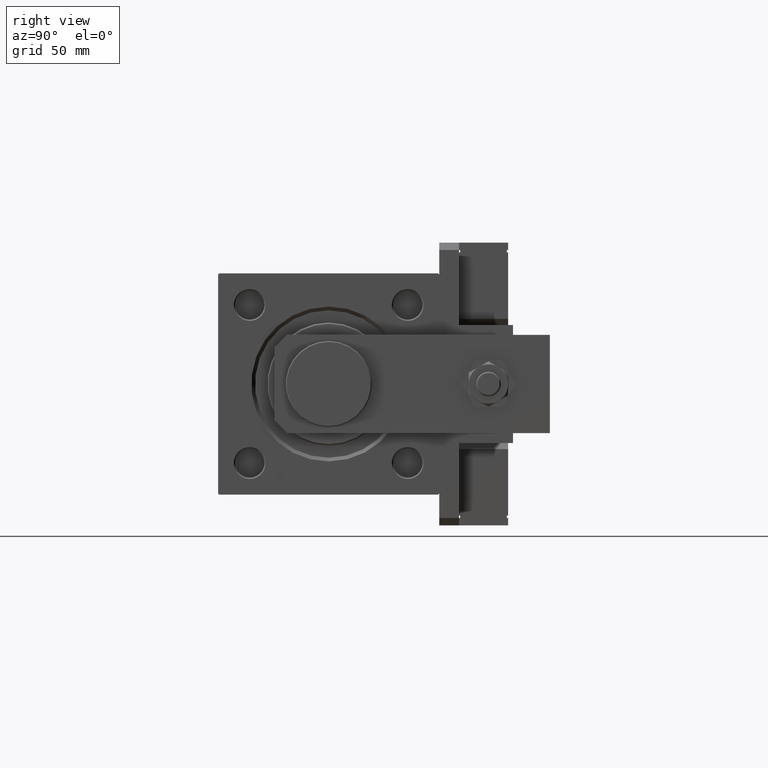
[diagram: clean part render]
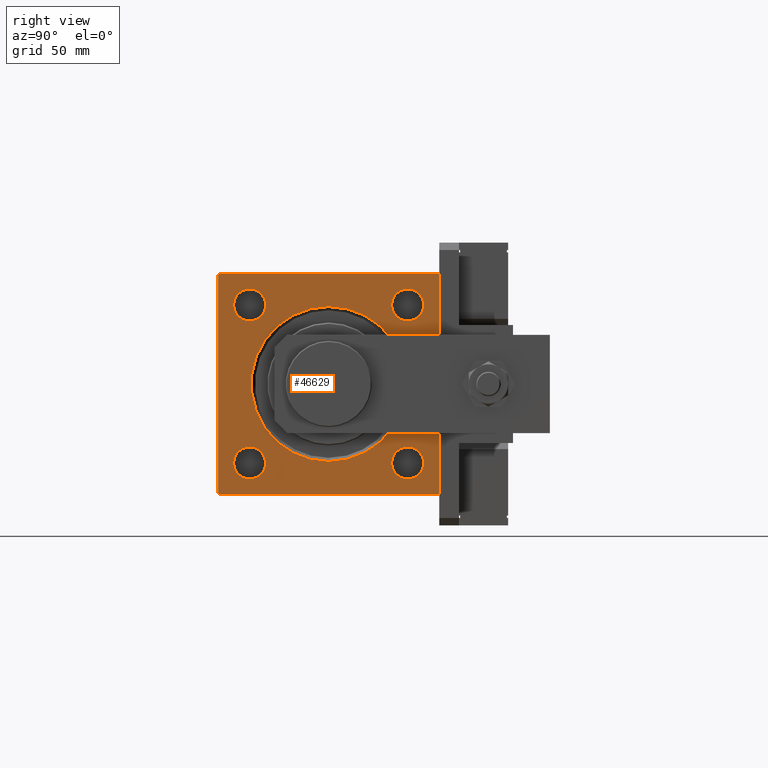
[diagram: same view with one face highlighted and labeled with its STEP entity id]
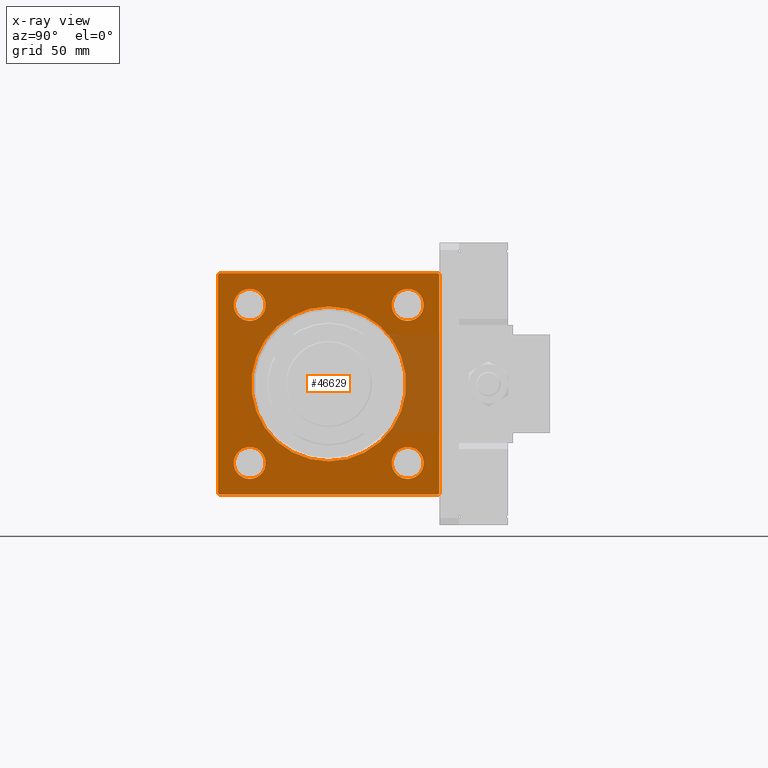
[diagram: x-ray of the same camera — body ghosted, the highlighted face saturated]
A machine part, right view. The second image highlights one B-rep face of the part: STEP entity #46629.
The next image is the same camera in x-ray: the body ghosted, the highlighted face saturated — about 14% of this face is hidden behind the body in this view.
In plain terms, the highlighted planar face has unit normal (-1, 0, 0).
Its self-contained STEP definition (entity closure, byte-faithful):
#22 = ORIENTED_EDGE ( 'NONE', *, *, #50787, .T. ) ;
#927 = CARTESIAN_POINT ( 'NONE',  ( 155.0000000000000000, -32.14999999999999858, -32.14999999999999858 ) ) ;
#1290 = DIRECTION ( 'NONE',  ( -1.000000000000000000, 0.000000000000000000, -0.000000000000000000 ) ) ;
#1686 = CARTESIAN_POINT ( 'NONE',  ( 155.0000000000000000, -44.50000000000002842, -45.00000000000000000 ) ) ;
#1828 = CARTESIAN_POINT ( 'NONE',  ( 155.0000000000000000, 44.50000000000000000, -44.99999999999998579 ) ) ;
#1943 = DIRECTION ( 'NONE',  ( -0.000000000000000000, 0.000000000000000000, 1.000000000000000000 ) ) ;
#2756 = DIRECTION ( 'NONE',  ( -1.000000000000000000, 0.000000000000000000, -0.000000000000000000 ) ) ;
#2788 = CARTESIAN_POINT ( 'NONE',  ( 155.0000000000000000, -32.14999999999999858, -32.14999999999999858 ) ) ;
#3079 = FACE_BOUND ( 'NONE', #17015, .T. ) ;
#3435 = ORIENTED_EDGE ( 'NONE', *, *, #36410, .T. ) ;
#3749 = ORIENTED_EDGE ( 'NONE', *, *, #22589, .T. ) ;
#3805 = VECTOR ( 'NONE', #52290, 1000.000000000000114 ) ;
#3822 = CARTESIAN_POINT ( 'NONE',  ( 155.0000000000000000, -44.50000000000005684, -45.00000000000000000 ) ) ;
#3868 = VECTOR ( 'NONE', #29458, 1000.000000000000000 ) ;
#3897 = VERTEX_POINT ( 'NONE', #1686 ) ;
#3972 = CARTESIAN_POINT ( 'NONE',  ( 155.0000000000000000, 32.14999999999999147, -25.65000000000001990 ) ) ;
#4815 = CIRCLE ( 'NONE', #47630, 31.49999999999997158 ) ;
#5215 = ORIENTED_EDGE ( 'NONE', *, *, #17796, .T. ) ;
#5228 = VERTEX_POINT ( 'NONE', #8800 ) ;
#6232 = DIRECTION ( 'NONE',  ( 0.000000000000000000, 0.000000000000000000, 1.000000000000000000 ) ) ;
#6338 = VERTEX_POINT ( 'NONE', #22720 ) ;
#6513 = EDGE_CURVE ( 'NONE', #5228, #54258, #4815, .T. ) ;
#6651 = VERTEX_POINT ( 'NONE', #39527 ) ;
#7074 = CARTESIAN_POINT ( 'NONE',  ( 155.0000000000000000, 45.00000000000000000, -44.99999999999998579 ) ) ;
#7086 = FACE_BOUND ( 'NONE', #48287, .T. ) ;
#7153 = VERTEX_POINT ( 'NONE', #47863 ) ;
#7620 = EDGE_CURVE ( 'NONE', #24651, #26486, #48563, .T. ) ;
#7937 = AXIS2_PLACEMENT_3D ( 'NONE', #8979, #26087, #39501 ) ;
#8183 = LINE ( 'NONE', #7074, #50503 ) ;
#8195 = DIRECTION ( 'NONE',  ( 0.000000000000000000, 0.000000000000000000, 1.000000000000000000 ) ) ;
#8254 = CIRCLE ( 'NONE', #54701, 6.499999999999977796 ) ;
#8789 = EDGE_CURVE ( 'NONE', #16240, #22405, #47627, .T. ) ;
#8800 = CARTESIAN_POINT ( 'NONE',  ( 155.0000000000000000, 0.000000000000000000, -31.49999999999997158 ) ) ;
#8979 = CARTESIAN_POINT ( 'NONE',  ( 155.0000000000000000, 32.14999999999999147, 32.14999999999999858 ) ) ;
#10140 = LINE ( 'NONE', #53768, #19413 ) ;
#10509 = FACE_BOUND ( 'NONE', #40409, .T. ) ;
#11348 = DIRECTION ( 'NONE',  ( 0.000000000000000000, -1.000000000000000000, -1.541976423090495387E-16 ) ) ;
#12544 = CARTESIAN_POINT ( 'NONE',  ( 155.0000000000000000, -45.00000000000000000, 45.00000000000000000 ) ) ;
#12882 = EDGE_LOOP ( 'NONE', ( #39610, #49359 ) ) ;
#13838 = AXIS2_PLACEMENT_3D ( 'NONE', #23606, #41019, #1943 ) ;
#14483 = ORIENTED_EDGE ( 'NONE', *, *, #33503, .T. ) ;
#15014 = VECTOR ( 'NONE', #43902, 1000.000000000000000 ) ;
#15695 = ORIENTED_EDGE ( 'NONE', *, *, #42128, .T. ) ;
#15715 = DIRECTION ( 'NONE',  ( -1.000000000000000000, 0.000000000000000000, -0.000000000000000000 ) ) ;
#16240 = VERTEX_POINT ( 'NONE', #54887 ) ;
#17015 = EDGE_LOOP ( 'NONE', ( #3435, #19749 ) ) ;
#17796 = EDGE_CURVE ( 'NONE', #49813, #50478, #37405, .T. ) ;
#19413 = VECTOR ( 'NONE', #32111, 1000.000000000000114 ) ;
#19457 = VECTOR ( 'NONE', #22429, 1000.000000000000000 ) ;
#19749 = ORIENTED_EDGE ( 'NONE', *, *, #8789, .T. ) ;
#19808 = CARTESIAN_POINT ( 'NONE',  ( 155.0000000000000000, 3.857637417314158745E-15, 31.49999999999997158 ) ) ;
#19823 = CARTESIAN_POINT ( 'NONE',  ( 155.0000000000000000, 45.00000000000000000, -44.49999999999995737 ) ) ;
#20024 = CARTESIAN_POINT ( 'NONE',  ( 155.0000000000000000, -32.14999999999999858, 25.65000000000001990 ) ) ;
#20067 = AXIS2_PLACEMENT_3D ( 'NONE', #21834, #1290, #39541 ) ;
#20781 = EDGE_LOOP ( 'NONE', ( #46977, #33648, #27115, #3749, #42637, #39190, #22, #42911 ) ) ;
#20798 = EDGE_CURVE ( 'NONE', #7153, #42531, #8254, .T. ) ;
#21364 = ORIENTED_EDGE ( 'NONE', *, *, #6513, .T. ) ;
#21834 = CARTESIAN_POINT ( 'NONE',  ( 155.0000000000000000, 32.14999999999999147, -32.14999999999999858 ) ) ;
#22405 = VERTEX_POINT ( 'NONE', #20024 ) ;
#22429 = DIRECTION ( 'NONE',  ( 0.000000000000000000, 0.000000000000000000, -1.000000000000000000 ) ) ;
#22589 = EDGE_CURVE ( 'NONE', #49048, #42284, #31680, .T. ) ;
#22720 = CARTESIAN_POINT ( 'NONE',  ( 155.0000000000000000, 45.00000000000000000, 44.50000000000004263 ) ) ;
#22937 = AXIS2_PLACEMENT_3D ( 'NONE', #23898, #41591, #6232 ) ;
#23101 = DIRECTION ( 'NONE',  ( -0.000000000000000000, 0.7071067811865474617, 0.7071067811865474617 ) ) ;
#23340 = CIRCLE ( 'NONE', #25142, 6.499999999999977796 ) ;
#23422 = CIRCLE ( 'NONE', #7937, 6.499999999999977796 ) ;
#23489 = CARTESIAN_POINT ( 'NONE',  ( 155.0000000000000000, 32.14999999999999147, 32.14999999999999858 ) ) ;
#23561 = DIRECTION ( 'NONE',  ( -0.000000000000000000, -0.7071067811865474617, -0.7071067811865474617 ) ) ;
#23606 = CARTESIAN_POINT ( 'NONE',  ( 155.0000000000000000, 0.000000000000000000, 0.000000000000000000 ) ) ;
#23898 = CARTESIAN_POINT ( 'NONE',  ( 155.0000000000000000, 0.000000000000000000, 0.000000000000000000 ) ) ;
#24027 = CARTESIAN_POINT ( 'NONE',  ( 155.0000000000000000, -32.14999999999999858, 32.14999999999999858 ) ) ;
#24147 = EDGE_CURVE ( 'NONE', #6651, #3897, #30636, .T. ) ;
#24173 = VERTEX_POINT ( 'NONE', #43459 ) ;
#24461 = FACE_BOUND ( 'NONE', #25623, .T. ) ;
#24651 = VERTEX_POINT ( 'NONE', #28531 ) ;
#25142 = AXIS2_PLACEMENT_3D ( 'NONE', #28120, #36397, #32687 ) ;
#25623 = EDGE_LOOP ( 'NONE', ( #15695, #5215 ) ) ;
#26087 = DIRECTION ( 'NONE',  ( -1.000000000000000000, 0.000000000000000000, -0.000000000000000000 ) ) ;
#26486 = VERTEX_POINT ( 'NONE', #26794 ) ;
#26794 = CARTESIAN_POINT ( 'NONE',  ( 155.0000000000000000, -32.14999999999999858, -25.65000000000001990 ) ) ;
#27008 = EDGE_CURVE ( 'NONE', #6338, #43106, #10140, .T. ) ;
#27115 = ORIENTED_EDGE ( 'NONE', *, *, #32639, .F. ) ;
#27157 = ORIENTED_EDGE ( 'NONE', *, *, #46564, .T. ) ;
#27735 = EDGE_CURVE ( 'NONE', #6338, #42284, #52389, .T. ) ;
#27745 = AXIS2_PLACEMENT_3D ( 'NONE', #2788, #46702, #8195 ) ;
#28120 = CARTESIAN_POINT ( 'NONE',  ( 155.0000000000000000, -32.14999999999999858, 32.14999999999999858 ) ) ;
#28312 = DIRECTION ( 'NONE',  ( -1.000000000000000000, 0.000000000000000000, -0.000000000000000000 ) ) ;
#28531 = CARTESIAN_POINT ( 'NONE',  ( 155.0000000000000000, -32.14999999999999858, -38.64999999999997726 ) ) ;
#29458 = DIRECTION ( 'NONE',  ( 0.000000000000000000, -1.000000000000000000, -1.541976423090495387E-16 ) ) ;
#29538 = AXIS2_PLACEMENT_3D ( 'NONE', #24027, #28312, #32878 ) ;
#30395 = AXIS2_PLACEMENT_3D ( 'NONE', #927, #52562, #44291 ) ;
#30448 = CARTESIAN_POINT ( 'NONE',  ( 155.0000000000000000, 45.00000000000000000, 45.00000000000001421 ) ) ;
#30636 = LINE ( 'NONE', #3822, #3805 ) ;
#31680 = LINE ( 'NONE', #32532, #36555 ) ;
#32111 = DIRECTION ( 'NONE',  ( 0.000000000000000000, -0.7071067811865474617, 0.7071067811865474617 ) ) ;
#32532 = CARTESIAN_POINT ( 'NONE',  ( 155.0000000000000000, 45.00000000000000000, -44.49999999999998579 ) ) ;
#32639 = EDGE_CURVE ( 'NONE', #49048, #3897, #8183, .T. ) ;
#32687 = DIRECTION ( 'NONE',  ( 0.000000000000000000, 0.000000000000000000, 1.000000000000000000 ) ) ;
#32878 = DIRECTION ( 'NONE',  ( 0.000000000000000000, 0.000000000000000000, 1.000000000000000000 ) ) ;
#33503 = EDGE_CURVE ( 'NONE', #26486, #24651, #37814, .T. ) ;
#33648 = ORIENTED_EDGE ( 'NONE', *, *, #24147, .T. ) ;
#34267 = EDGE_CURVE ( 'NONE', #56141, #6651, #38499, .T. ) ;
#35242 = VECTOR ( 'NONE', #23561, 1000.000000000000114 ) ;
#36397 = DIRECTION ( 'NONE',  ( -1.000000000000000000, 0.000000000000000000, -0.000000000000000000 ) ) ;
#36410 = EDGE_CURVE ( 'NONE', #22405, #16240, #23340, .T. ) ;
#36555 = VECTOR ( 'NONE', #23101, 1000.000000000000114 ) ;
#36751 = PLANE ( 'NONE',  #13838 ) ;
#37273 = EDGE_CURVE ( 'NONE', #24173, #56141, #41262, .T. ) ;
#37405 = CIRCLE ( 'NONE', #48303, 6.499999999999977796 ) ;
#37814 = CIRCLE ( 'NONE', #27745, 6.499999999999977796 ) ;
#38319 = EDGE_CURVE ( 'NONE', #42531, #7153, #23422, .T. ) ;
#38499 = LINE ( 'NONE', #12544, #15014 ) ;
#39190 = ORIENTED_EDGE ( 'NONE', *, *, #27008, .T. ) ;
#39501 = DIRECTION ( 'NONE',  ( 0.000000000000000000, 0.000000000000000000, 1.000000000000000000 ) ) ;
#39527 = CARTESIAN_POINT ( 'NONE',  ( 155.0000000000000000, -45.00000000000000000, -44.50000000000002842 ) ) ;
#39541 = DIRECTION ( 'NONE',  ( 0.000000000000000000, 0.000000000000000000, 1.000000000000000000 ) ) ;
#39610 = ORIENTED_EDGE ( 'NONE', *, *, #38319, .T. ) ;
#40409 = EDGE_LOOP ( 'NONE', ( #21364, #27157 ) ) ;
#40703 = CARTESIAN_POINT ( 'NONE',  ( 155.0000000000000000, -45.00000000000000000, 44.50000000000002842 ) ) ;
#40903 = DIRECTION ( 'NONE',  ( -1.000000000000000000, 0.000000000000000000, -0.000000000000000000 ) ) ;
#41019 = DIRECTION ( 'NONE',  ( -1.000000000000000000, 0.000000000000000000, -0.000000000000000000 ) ) ;
#41262 = LINE ( 'NONE', #40703, #35242 ) ;
#41591 = DIRECTION ( 'NONE',  ( -1.000000000000000000, 0.000000000000000000, -0.000000000000000000 ) ) ;
#41919 = CARTESIAN_POINT ( 'NONE',  ( 155.0000000000000000, 44.50000000000002842, 45.00000000000001421 ) ) ;
#42128 = EDGE_CURVE ( 'NONE', #50478, #49813, #48269, .T. ) ;
#42143 = FACE_BOUND ( 'NONE', #12882, .T. ) ;
#42284 = VERTEX_POINT ( 'NONE', #19823 ) ;
#42531 = VERTEX_POINT ( 'NONE', #55439 ) ;
#42637 = ORIENTED_EDGE ( 'NONE', *, *, #27735, .F. ) ;
#42911 = ORIENTED_EDGE ( 'NONE', *, *, #37273, .T. ) ;
#43106 = VERTEX_POINT ( 'NONE', #41919 ) ;
#43459 = CARTESIAN_POINT ( 'NONE',  ( 155.0000000000000000, -44.50000000000000000, 45.00000000000000000 ) ) ;
#43884 = CIRCLE ( 'NONE', #22937, 31.49999999999997158 ) ;
#43902 = DIRECTION ( 'NONE',  ( 0.000000000000000000, 0.000000000000000000, -1.000000000000000000 ) ) ;
#44291 = DIRECTION ( 'NONE',  ( 0.000000000000000000, 0.000000000000000000, 1.000000000000000000 ) ) ;
#45300 = FACE_OUTER_BOUND ( 'NONE', #20781, .T. ) ;
#46564 = EDGE_CURVE ( 'NONE', #54258, #5228, #43884, .T. ) ;
#46629 = ADVANCED_FACE ( 'NONE', ( #42143, #3079, #7086, #24461, #10509, #45300 ), #36751, .F. ) ;
#46702 = DIRECTION ( 'NONE',  ( -1.000000000000000000, 0.000000000000000000, -0.000000000000000000 ) ) ;
#46851 = LINE ( 'NONE', #55120, #3868 ) ;
#46977 = ORIENTED_EDGE ( 'NONE', *, *, #34267, .T. ) ;
#47063 = CARTESIAN_POINT ( 'NONE',  ( 155.0000000000000000, 32.14999999999999147, -32.14999999999999858 ) ) ;
#47627 = CIRCLE ( 'NONE', #29538, 6.499999999999977796 ) ;
#47630 = AXIS2_PLACEMENT_3D ( 'NONE', #51502, #2756, #55228 ) ;
#47863 = CARTESIAN_POINT ( 'NONE',  ( 155.0000000000000000, 32.14999999999999147, 38.64999999999997726 ) ) ;
#48269 = CIRCLE ( 'NONE', #20067, 6.499999999999977796 ) ;
#48287 = EDGE_LOOP ( 'NONE', ( #50338, #14483 ) ) ;
#48303 = AXIS2_PLACEMENT_3D ( 'NONE', #47063, #15715, #50204 ) ;
#48563 = CIRCLE ( 'NONE', #30395, 6.499999999999977796 ) ;
#49048 = VERTEX_POINT ( 'NONE', #1828 ) ;
#49359 = ORIENTED_EDGE ( 'NONE', *, *, #20798, .T. ) ;
#49813 = VERTEX_POINT ( 'NONE', #3972 ) ;
#50204 = DIRECTION ( 'NONE',  ( 0.000000000000000000, 0.000000000000000000, 1.000000000000000000 ) ) ;
#50338 = ORIENTED_EDGE ( 'NONE', *, *, #7620, .T. ) ;
#50478 = VERTEX_POINT ( 'NONE', #51460 ) ;
#50503 = VECTOR ( 'NONE', #11348, 1000.000000000000000 ) ;
#50787 = EDGE_CURVE ( 'NONE', #43106, #24173, #46851, .T. ) ;
#51460 = CARTESIAN_POINT ( 'NONE',  ( 155.0000000000000000, 32.14999999999999147, -38.64999999999997726 ) ) ;
#51502 = CARTESIAN_POINT ( 'NONE',  ( 155.0000000000000000, 0.000000000000000000, 0.000000000000000000 ) ) ;
#51595 = CARTESIAN_POINT ( 'NONE',  ( 155.0000000000000000, -45.00000000000000000, 44.50000000000002842 ) ) ;
#52290 = DIRECTION ( 'NONE',  ( 0.000000000000000000, 0.7071067811865474617, -0.7071067811865474617 ) ) ;
#52389 = LINE ( 'NONE', #30448, #19457 ) ;
#52562 = DIRECTION ( 'NONE',  ( -1.000000000000000000, 0.000000000000000000, -0.000000000000000000 ) ) ;
#53768 = CARTESIAN_POINT ( 'NONE',  ( 155.0000000000000000, 44.50000000000002842, 45.00000000000001421 ) ) ;
#54258 = VERTEX_POINT ( 'NONE', #19808 ) ;
#54565 = DIRECTION ( 'NONE',  ( 0.000000000000000000, 0.000000000000000000, 1.000000000000000000 ) ) ;
#54701 = AXIS2_PLACEMENT_3D ( 'NONE', #23489, #40903, #54565 ) ;
#54887 = CARTESIAN_POINT ( 'NONE',  ( 155.0000000000000000, -32.14999999999999858, 38.64999999999997726 ) ) ;
#55120 = CARTESIAN_POINT ( 'NONE',  ( 155.0000000000000000, 45.00000000000000000, 45.00000000000001421 ) ) ;
#55228 = DIRECTION ( 'NONE',  ( 0.000000000000000000, 0.000000000000000000, 1.000000000000000000 ) ) ;
#55439 = CARTESIAN_POINT ( 'NONE',  ( 155.0000000000000000, 32.14999999999999147, 25.65000000000001990 ) ) ;
#56141 = VERTEX_POINT ( 'NONE', #51595 ) ;